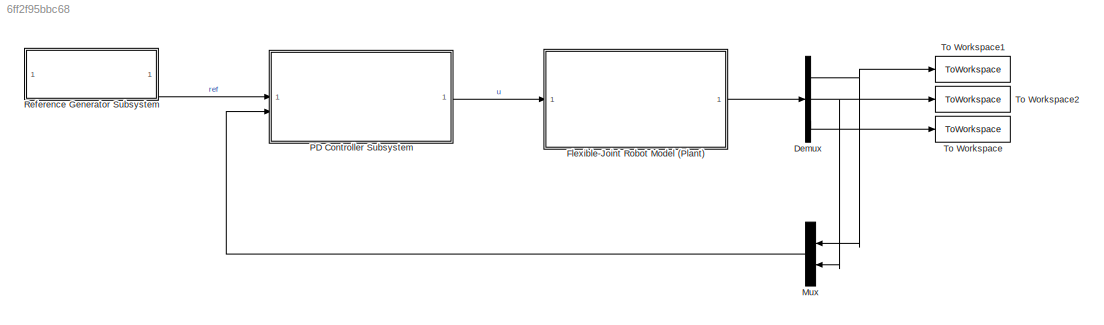
MODEL slx_6ff2f95bbc68
KIND model
CONFIG AbsTol = auto
CONFIG EnableMultiTasking = off
CONFIG FixedStep = auto
CONFIG MaxStep = auto
CONFIG MinStep = auto
CONFIG RelTol = 1e-3
CONFIG SampleTimeConstraint = Unconstrained
CONFIG SolverName = ode45
CONFIG StartTime = 0.0
CONFIG StopTime = stop_time
BLOCK [Demux] Demux
  Outputs = 3
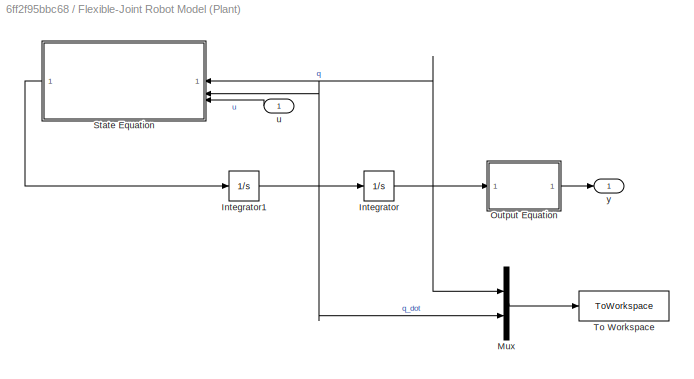
BLOCK [SubSystem] Flexible-Joint Robot Model (Plant)
BLOCK [Integrator] Flexible-Joint Robot Model (Plant)/Integrator
  InitialCondition = plant.initial.q
BLOCK [Integrator] Flexible-Joint Robot Model (Plant)/Integrator1
  InitialCondition = plant.initial.qdot
BLOCK [Mux] Flexible-Joint Robot Model (Plant)/Mux
  DisplayOption = bar
  Inputs = 2
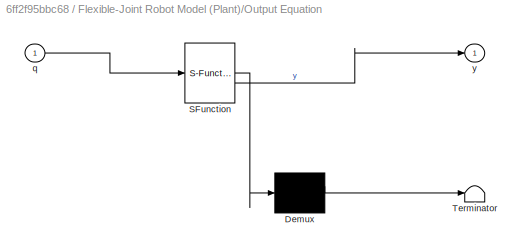
BLOCK [SubSystem] Flexible-Joint Robot Model (Plant)/Output Equation
  ErrorFcn = Stateflow.Translate.translate
  PermitHierarchicalResolution = ExplicitOnly
  SFBlockType = MATLAB Function
  TreatAsAtomicUnit = on
BLOCK [Demux] Flexible-Joint Robot Model (Plant)/Output Equation/ Demux 
  Outputs = 1
BLOCK [S-Function] Flexible-Joint Robot Model (Plant)/Output Equation/ SFunction 
  EnableBusSupport = on
  FunctionName = sf_sfun
  PortCounts = [1 2]
  SFcnIsStateOwnerBlock = off
  SFunctionDeploymentMode = off
  Tag = Stateflow S-Function 1
BLOCK [Terminator] Flexible-Joint Robot Model (Plant)/Output Equation/ Terminator 
BLOCK [Inport] Flexible-Joint Robot Model (Plant)/Output Equation/q
BLOCK [Outport] Flexible-Joint Robot Model (Plant)/Output Equation/y
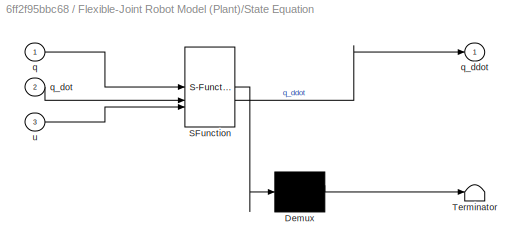
BLOCK [SubSystem] Flexible-Joint Robot Model (Plant)/State Equation
  ErrorFcn = Stateflow.Translate.translate
  PermitHierarchicalResolution = ExplicitOnly
  SFBlockType = MATLAB Function
  TreatAsAtomicUnit = on
BLOCK [Demux] Flexible-Joint Robot Model (Plant)/State Equation/ Demux 
  Outputs = 1
BLOCK [S-Function] Flexible-Joint Robot Model (Plant)/State Equation/ SFunction 
  EnableBusSupport = on
  FunctionName = sf_sfun
  PortCounts = [3 2]
  SFcnIsStateOwnerBlock = off
  SFunctionDeploymentMode = off
  Tag = Stateflow S-Function 2
BLOCK [Terminator] Flexible-Joint Robot Model (Plant)/State Equation/ Terminator 
BLOCK [Inport] Flexible-Joint Robot Model (Plant)/State Equation/q
BLOCK [Outport] Flexible-Joint Robot Model (Plant)/State Equation/q_ddot
BLOCK [Inport] Flexible-Joint Robot Model (Plant)/State Equation/q_dot
  Port = 2
BLOCK [Inport] Flexible-Joint Robot Model (Plant)/State Equation/u
  Port = 3
BLOCK [ToWorkspace] Flexible-Joint Robot Model (Plant)/To Workspace
  FixptAsFi = on
  MaxDataPoints = inf
  SampleTime = -1
  SaveFormat = Structure With Time
  VariableName = x
BLOCK [Inport] Flexible-Joint Robot Model (Plant)/u
BLOCK [Outport] Flexible-Joint Robot Model (Plant)/y
BLOCK [Mux] Mux
  DisplayOption = bar
  Inputs = 2
  NameLocation = top
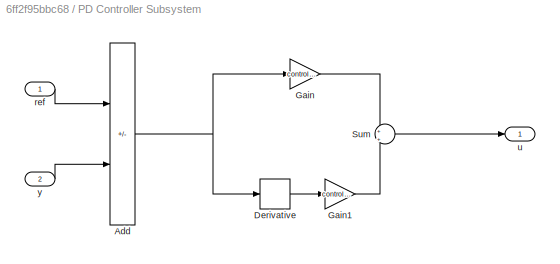
BLOCK [SubSystem] PD Controller Subsystem
BLOCK [Sum] PD Controller Subsystem/Add
  IconShape = rectangular
  Inputs = +-
BLOCK [Derivative] PD Controller Subsystem/Derivative
BLOCK [Gain] PD Controller Subsystem/Gain
  Gain = controller.Kp
  Multiplication = Matrix(K*u)
BLOCK [Gain] PD Controller Subsystem/Gain1
  Gain = controller.Kd
  Multiplication = Matrix(K*u)
BLOCK [Sum] PD Controller Subsystem/Sum
  Inputs = +|+
BLOCK [Inport] PD Controller Subsystem/ref
BLOCK [Outport] PD Controller Subsystem/u
BLOCK [Inport] PD Controller Subsystem/y
  Port = 2
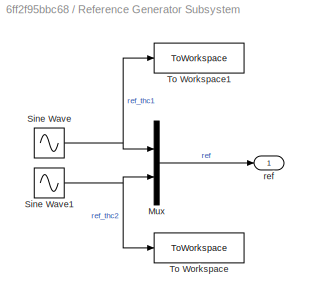
BLOCK [SubSystem] Reference Generator Subsystem
BLOCK [Mux] Reference Generator Subsystem/Mux
  DisplayOption = bar
  Inputs = 2
BLOCK [Sin] Reference Generator Subsystem/Sine Wave
  Amplitude = reference.thc1.A
  Frequency = reference.thc1.w
  SampleTime = 0.001
BLOCK [Sin] Reference Generator Subsystem/Sine Wave1
  Amplitude = reference.thc2.A
  Frequency = reference.thc2.w
  SampleTime = 0.001
BLOCK [ToWorkspace] Reference Generator Subsystem/To Workspace
  FixptAsFi = on
  MaxDataPoints = inf
  SampleTime = -1
  SaveFormat = Structure With Time
  VariableName = ref2
BLOCK [ToWorkspace] Reference Generator Subsystem/To Workspace1
  FixptAsFi = on
  MaxDataPoints = inf
  SampleTime = -1
  SaveFormat = Structure With Time
  VariableName = ref1
BLOCK [Outport] Reference Generator Subsystem/ref
BLOCK [ToWorkspace] To Workspace
  FixptAsFi = on
  MaxDataPoints = inf
  SampleTime = -1
  SaveFormat = Structure With Time
  VariableName = y3
BLOCK [ToWorkspace] To Workspace1
  FixptAsFi = on
  MaxDataPoints = inf
  SampleTime = -1
  SaveFormat = Structure With Time
  VariableName = y1
BLOCK [ToWorkspace] To Workspace2
  FixptAsFi = on
  MaxDataPoints = inf
  SampleTime = -1
  SaveFormat = Structure With Time
  VariableName = y2
NET Demux:1 -> Mux:1, To Workspace1:1
NET Demux:2 -> Mux:2, To Workspace2:1
LINE Demux:3 -> To Workspace:1
NET Flexible-Joint Robot Model (Plant)/Integrator1:1 -> Flexible-Joint Robot Model (Plant)/Integrator:1, Flexible-Joint Robot Model (Plant)/Mux:2, Flexible-Joint Robot Model (Plant)/State Equation:2
NET Flexible-Joint Robot Model (Plant)/Integrator:1 -> Flexible-Joint Robot Model (Plant)/Mux:1, Flexible-Joint Robot Model (Plant)/Output Equation:1, Flexible-Joint Robot Model (Plant)/State Equation:1
LINE Flexible-Joint Robot Model (Plant)/Mux:1 -> Flexible-Joint Robot Model (Plant)/To Workspace:1
LINE Flexible-Joint Robot Model (Plant)/Output Equation:1 -> Flexible-Joint Robot Model (Plant)/y:1
LINE Flexible-Joint Robot Model (Plant)/State Equation:1 -> Flexible-Joint Robot Model (Plant)/Integrator1:1
LINE Flexible-Joint Robot Model (Plant)/u:1 -> Flexible-Joint Robot Model (Plant)/State Equation:3
LINE Flexible-Joint Robot Model (Plant):1 -> Demux:1
LINE Mux:1 -> PD Controller Subsystem:2
NET PD Controller Subsystem/Add:1 -> PD Controller Subsystem/Derivative:1, PD Controller Subsystem/Gain:1
LINE PD Controller Subsystem/Derivative:1 -> PD Controller Subsystem/Gain1:1
LINE PD Controller Subsystem/Gain1:1 -> PD Controller Subsystem/Sum:2
LINE PD Controller Subsystem/Gain:1 -> PD Controller Subsystem/Sum:1
LINE PD Controller Subsystem/Sum:1 -> PD Controller Subsystem/u:1
LINE PD Controller Subsystem/ref:1 -> PD Controller Subsystem/Add:1
LINE PD Controller Subsystem/y:1 -> PD Controller Subsystem/Add:2
LINE PD Controller Subsystem:1 -> Flexible-Joint Robot Model (Plant):1
LINE Reference Generator Subsystem/Mux:1 -> Reference Generator Subsystem/ref:1
NET Reference Generator Subsystem/Sine Wave1:1 -> Reference Generator Subsystem/Mux:2, Reference Generator Subsystem/To Workspace:1
NET Reference Generator Subsystem/Sine Wave:1 -> Reference Generator Subsystem/Mux:1, Reference Generator Subsystem/To Workspace1:1
LINE Reference Generator Subsystem:1 -> PD Controller Subsystem:1
note: NET lines group one-source signal fan-out (src -> all destinations, sorted); 1:1 wires keep LINE
CHART Flexible-Joint Robot Model (Plant)/Output Equation states=1 transitions=1
  STATE_LABEL 'eML_blk_kernel()'
  STATE_LABEL "SCRIPT:\nfunction y = f_out_block(q)\n% Call the CasADi function which models the output equation of the model.\n% Input:\n%   q : [4x1] [theta1; theta2; delta1; delta2]\n% Output:\n%   y : [3x1] [y1, y2, y3]\n\n% Declare f_out as extrinsic\ncoder.extrinsic('f_out_mex');\n\n% Allocate y variable\ny = zeros(3,1);\n\n% Call mex function built using CasADi\ny = f_out_mex('f_out', q);\nend\n\n"
CHART Flexible-Joint Robot Model (Plant)/State Equation states=1 transitions=1
  STATE_LABEL 'eML_blk_kernel()'
  STATE_LABEL "SCRIPT:\nfunction q_ddot = f_dyn_block(q, q_dot, u)\n% Call the CasADi function which models the dynamics of the robot.\n% Inputs:\n%   q      : [4x1] [theta1; theta2; delta1; delta2]\n%   q_dot  : [4x1] [dtheta1; dtheta2; ddelta1; ddelta2]\n%   u      : [2x1] [u1; u2]\n% Output:\n%   q_ddot : [4x1] accelerations\n\n% Declare f_dyn as extrinsic\ncoder.extrinsic('f_dyn_mex');\n\n% Allocate q_ddot variable\nq_ddo...<+102ch>"
CHART  states=0 transitions=0
CHART  states=0 transitions=0
